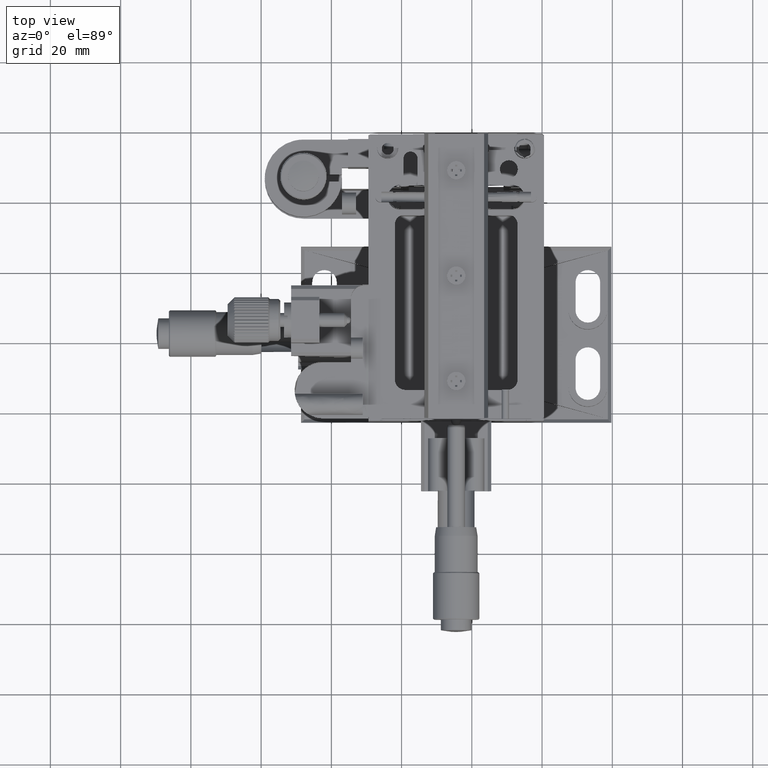
[diagram: clean part render]
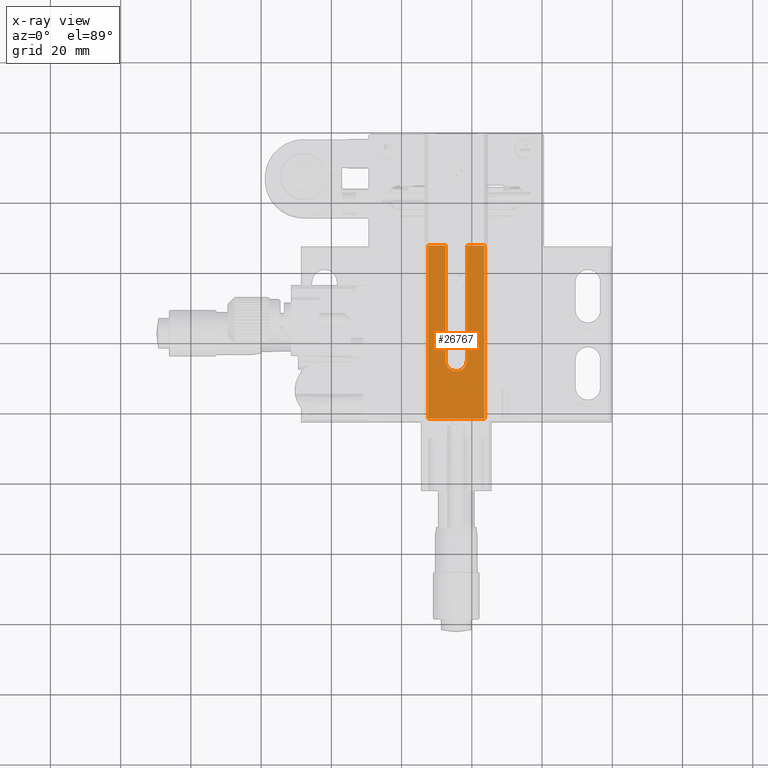
[diagram: x-ray — body ghosted, one internal face saturated and labeled with its STEP entity id]
A machine part, top view, then the same camera in x-ray: the body is ghosted and one INTERNAL B-rep face — a face not visible from any outside direction — is saturated and labeled: STEP entity #26767.
In plain terms, the highlighted face is a freeform B-spline surface patch.
Its self-contained STEP definition (entity closure, byte-faithful):
#816 = CARTESIAN_POINT ( 'NONE',  ( -6.724032030192061526, -7.566187688535866762, 34.50000000000001421 ) ) ;
#842 = CARTESIAN_POINT ( 'NONE',  ( 3.543628209608439938, 26.90884961642780127, 34.50000000000000000 ) ) ;
#1138 = B_SPLINE_CURVE_WITH_KNOTS ( 'NONE', 1,
 ( #19211, #39025 ),
 .UNSPECIFIED., .F., .F.,
 ( 2, 2 ),
 ( 0.000000000000000000, 1.000000000000000000 ),
 .UNSPECIFIED. ) ;
#1469 = CARTESIAN_POINT ( 'NONE',  ( -4.646927829171333180, -8.591186687580732340, 34.50000000000000000 ) ) ;
#2750 = EDGE_CURVE ( 'NONE', #7240, #56161, #36124, .T. ) ;
#3112 = EDGE_LOOP ( 'NONE', ( #17551, #42060, #48616, #16495, #47253, #57945, #20551, #12843 ) ) ;
#3640 = CARTESIAN_POINT ( 'NONE',  ( -7.175109742365060939, -6.861532400837392132, 34.50000000000000000 ) ) ;
#3801 = B_SPLINE_CURVE_WITH_KNOTS ( 'NONE', 1,
 ( #15497, #35633 ),
 .UNSPECIFIED., .F., .F.,
 ( 2, 2 ),
 ( 0.000000000000000000, 1.000000000000000000 ),
 .UNSPECIFIED. ) ;
#3863 = CARTESIAN_POINT ( 'NONE',  ( -12.45637179039160003, 26.90884961642780127, 34.50000000000000000 ) ) ;
#4133 = EDGE_CURVE ( 'NONE', #60061, #7240, #1138, .T. ) ;
#5405 = CARTESIAN_POINT ( 'NONE',  ( -2.481334482586717183, -7.858810620528181801, 34.50000000000000711 ) ) ;
#5721 = CARTESIAN_POINT ( 'NONE',  ( -5.945462146026526895, -8.228256238939998468, 34.50000000000002132 ) ) ;
#6371 = CARTESIAN_POINT ( 'NONE',  ( -3.185989770951141775, -8.309888333367878133, 34.49999999999999289 ) ) ;
#6377 = CARTESIAN_POINT ( 'NONE',  ( -7.456371790391560062, -5.591150383572199623, 34.50000000000000000 ) ) ;
#6691 = CARTESIAN_POINT ( 'NONE',  ( -12.45637179039160003, 27.15884961642780127, 34.25000000000000000 ) ) ;
#6931 = VERTEX_POINT ( 'NONE', #6691 ) ;
#7240 = VERTEX_POINT ( 'NONE', #11109 ) ;
#8522 = CARTESIAN_POINT ( 'NONE',  ( -7.236960231211669203, -6.717591220812076713, 34.49999999999998579 ) ) ;
#8982 = B_SPLINE_CURVE_WITH_KNOTS ( 'NONE', 1,
 ( #3863, #38604 ),
 .UNSPECIFIED., .F., .F.,
 ( 2, 2 ),
 ( 0.000000000000000000, 1.000000000000000000 ),
 .UNSPECIFIED. ) ;
#9844 = B_SPLINE_CURVE_WITH_KNOTS ( 'NONE', 1,
 ( #40067, #59926 ),
 .UNSPECIFIED., .F., .F.,
 ( 2, 2 ),
 ( 0.000000000000000000, 1.000000000000000000 ),
 .UNSPECIFIED. ) ;
#10609 = CARTESIAN_POINT ( 'NONE',  ( -1.456371790391570054, -5.591150383572189853, 34.50000000000000000 ) ) ;
#10842 = B_SPLINE_CURVE_WITH_KNOTS ( 'NONE', 1,
 ( #51991, #26326 ),
 .UNSPECIFIED., .F., .F.,
 ( 2, 2 ),
 ( 0.000000000000000000, 1.000000000000000000 ),
 .UNSPECIFIED. ) ;
#10927 = CARTESIAN_POINT ( 'NONE',  ( -6.917292522326119020, -7.329345882729645822, 34.50000000000000000 ) ) ;
#11109 = CARTESIAN_POINT ( 'NONE',  ( -1.456371790391570054, -5.591150383572189853, 34.50000000000000000 ) ) ;
#11245 = CARTESIAN_POINT ( 'NONE',  ( -1.456371790391572496, -5.781798173951964159, 34.50000000000000711 ) ) ;
#12843 = ORIENTED_EDGE ( 'NONE', *, *, #4133, .T. ) ;
#12861 = VERTEX_POINT ( 'NONE', #59846 ) ;
#14837 = CARTESIAN_POINT ( 'NONE',  ( 3.543628209608445268, -22.09115038357220229, 34.50000000000000000 ) ) ;
#15125 = CARTESIAN_POINT ( 'NONE',  ( -1.657490696713818989, -6.671384123071475436, 34.50000000000000711 ) ) ;
#15443 = CARTESIAN_POINT ( 'NONE',  ( -5.471632338217490066, -8.414266547862295553, 34.50000000000000000 ) ) ;
#15479 = FACE_OUTER_BOUND ( 'NONE', #3112, .T. ) ;
#15497 = CARTESIAN_POINT ( 'NONE',  ( -12.45637179039160003, -22.09115038357220229, 34.50000000000000000 ) ) ;
#15768 = CARTESIAN_POINT ( 'NONE',  ( -5.404597694830522769, -8.438138616300717487, 34.50000000000001421 ) ) ;
#15813 = CARTESIAN_POINT ( 'NONE',  ( -12.45637179039160003, -22.09115038357220229, 34.50000000000000000 ) ) ;
#16495 = ORIENTED_EDGE ( 'NONE', *, *, #38088, .T. ) ;
#17225 = CARTESIAN_POINT ( 'NONE',  ( 3.543628209608445268, -22.09115038357220229, 34.50000000000000000 ) ) ;
#17427 = CARTESIAN_POINT ( 'NONE',  ( -1.456371790391570054, 27.15884961642780127, 34.25000000000000000 ) ) ;
#17551 = ORIENTED_EDGE ( 'NONE', *, *, #2750, .T. ) ;
#18243 = B_SPLINE_CURVE_WITH_KNOTS ( 'NONE', 1,
 ( #50276, #55137 ),
 .UNSPECIFIED., .F., .F.,
 ( 2, 2 ),
 ( 0.000000000000000000, 1.000000000000000000 ),
 .UNSPECIFIED. ) ;
#19211 = CARTESIAN_POINT ( 'NONE',  ( -1.456371790391572718, 26.90884961642780127, 34.50000000000000000 ) ) ;
#20324 = CARTESIAN_POINT ( 'NONE',  ( -3.329942432763863369, -8.371743371367662334, 34.49999999999999289 ) ) ;
#20551 = ORIENTED_EDGE ( 'NONE', *, *, #48957, .T. ) ;
#22175 = B_SPLINE_CURVE_WITH_KNOTS ( 'NONE', 1,
 ( #14837, #842 ),
 .UNSPECIFIED., .F., .F.,
 ( 2, 2 ),
 ( 0.000000000000000000, 1.000000000000000000 ),
 .UNSPECIFIED. ) ;
#22493 = CARTESIAN_POINT ( 'NONE',  ( -7.456371790391589371, -5.972832465827432102, 34.50000000000000000 ) ) ;
#22807 = CARTESIAN_POINT ( 'NONE',  ( -7.456371790391560062, -5.591150383572199623, 34.50000000000000000 ) ) ;
#23124 = CARTESIAN_POINT ( 'NONE',  ( -7.206198727999506559, -6.790891880443387763, 34.50000000000000711 ) ) ;
#26176 = CARTESIAN_POINT ( 'NONE',  ( -3.304086832426512910, -8.361156449409486768, 34.50000000000000711 ) ) ;
#26326 = CARTESIAN_POINT ( 'NONE',  ( -1.456371790391572718, 26.90884961642780127, 34.50000000000000000 ) ) ;
#26767 = ADVANCED_FACE ( 'NONE', ( #15479 ), #48066, .T. ) ;
#27352 = CARTESIAN_POINT ( 'NONE',  ( -7.386160091454011756, -6.340927175389293069, 34.50000000000000000 ) ) ;
#27423 = EDGE_CURVE ( 'NONE', #40795, #46750, #3801, .T. ) ;
#30051 = CARTESIAN_POINT ( 'NONE',  ( -1.559495223206133874, -6.382014713114655180, 34.50000000000000000 ) ) ;
#30378 = CARTESIAN_POINT ( 'NONE',  ( -1.649728226918873997, -6.651021216559199090, 34.50000000000000000 ) ) ;
#30699 = CARTESIAN_POINT ( 'NONE',  ( -7.096826730085001422, -7.022550258775886789, 34.50000000000000000 ) ) ;
#31017 = CARTESIAN_POINT ( 'NONE',  ( -1.482701177493163103, -6.062819532822482316, 34.50000000000000711 ) ) ;
#34939 = CARTESIAN_POINT ( 'NONE',  ( -1.819265935051881389, -7.080240739239760828, 34.50000000000000000 ) ) ;
#35161 = EDGE_CURVE ( 'NONE', #56161, #63134, #18243, .T. ) ;
#35198 = EDGE_CURVE ( 'NONE', #46750, #12861, #22175, .T. ) ;
#35583 = CARTESIAN_POINT ( 'NONE',  ( -2.042485375322491414, -7.419790940339398233, 34.49999999999999289 ) ) ;
#35633 = CARTESIAN_POINT ( 'NONE',  ( 3.543628209608445268, -22.09115038357220229, 34.50000000000000000 ) ) ;
#36124 = B_SPLINE_CURVE_WITH_KNOTS ( 'NONE', 3,
 ( #10609, #11245, #31017, #30051, #59668, #60304, #30378, #15125, #34939, #35583, #5405, #54786, #50895, #6371, #45013, #26176, #20324, #45996, #40134, #1469, #39487, #59986, #15768, #15443, #55430, #50249, #5721, #59347, #816, #10927, #30699, #3640, #23124, #62454, #8522, #27352, #22493, #22807 ),
 .UNSPECIFIED., .F., .F.,
 ( 4, 1, 1, 1, 2, 2, 2, 1, 1, 1, 2, 2, 2, 1, 1, 1, 2, 2, 2, 1, 1, 1, 2, 2, 4 ),
 ( 0.000000000000000000, 0.06250000000000045797, 0.09375000000000054123, 0.1093750000000005829, 0.1171875000000005967, 0.1250000000000006106, 0.2499999999999996947, 0.3124999999999992784, 0.3437499999999990008, 0.3593749999999990008, 0.3671874999999989453, 0.3749999999999988898, 0.4999999999999980571, 0.5624999999999974465, 0.5937499999999970024, 0.6093749999999968914, 0.6171874999999968914, 0.6249999999999967804, 0.7499999999999994449, 0.8125000000000008882, 0.8437500000000015543, 0.8593750000000018874, 0.8671875000000018874, 0.8750000000000019984, 1.000000000000000000 ),
 .UNSPECIFIED. ) ;
#38088 = EDGE_CURVE ( 'NONE', #6931, #40795, #8982, .T. ) ;
#38604 = CARTESIAN_POINT ( 'NONE',  ( -12.45637179039160003, -22.09115038357220229, 34.50000000000000000 ) ) ;
#39025 = CARTESIAN_POINT ( 'NONE',  ( -1.456371790391570054, -5.591150383572189853, 34.50000000000000000 ) ) ;
#39487 = CARTESIAN_POINT ( 'NONE',  ( -4.927880374341859770, -8.564884528485547932, 34.50000000000000000 ) ) ;
#40067 = CARTESIAN_POINT ( 'NONE',  ( -7.456371790391586707, 26.90884961642780127, 34.50000000000000000 ) ) ;
#40134 = CARTESIAN_POINT ( 'NONE',  ( -4.075259712832071557, -8.591077775555090668, 34.50000000000000000 ) ) ;
#40492 = CARTESIAN_POINT ( 'NONE',  ( 3.543628209608439938, -22.09115038357220229, 34.50000000000000000 ) ) ;
#40795 = VERTEX_POINT ( 'NONE', #60579 ) ;
#42060 = ORIENTED_EDGE ( 'NONE', *, *, #35161, .T. ) ;
#45013 = CARTESIAN_POINT ( 'NONE',  ( -3.256630292210824340, -8.340977319869010032, 34.49999999999998579 ) ) ;
#45996 = CARTESIAN_POINT ( 'NONE',  ( -3.706411324781010208, -8.520865933029606154, 34.50000000000001421 ) ) ;
#46750 = VERTEX_POINT ( 'NONE', #17225 ) ;
#47186 = EDGE_CURVE ( 'NONE', #63134, #6931, #9844, .T. ) ;
#47253 = ORIENTED_EDGE ( 'NONE', *, *, #27423, .T. ) ;
#48066 = B_SPLINE_SURFACE_WITH_KNOTS ( 'NONE', 1, 1, ( 
 ( #50286, #40492 ),
 ( #60345, #15813 ) ),
 .UNSPECIFIED., .F., .F., .F.,
 ( 2, 2 ),
 ( 2, 2 ),
 ( 0.000000000000000000, 1.000000000000000000 ),
 ( 0.000000000000000000, 1.000000000000000000 ),
 .UNSPECIFIED. ) ;
#48616 = ORIENTED_EDGE ( 'NONE', *, *, #47186, .T. ) ;
#48957 = EDGE_CURVE ( 'NONE', #12861, #60061, #10842, .T. ) ;
#50249 = CARTESIAN_POINT ( 'NONE',  ( -5.536605529892936417, -8.390031477248157898, 34.50000000000000711 ) ) ;
#50276 = CARTESIAN_POINT ( 'NONE',  ( -7.456371790391560062, -5.591150383572199623, 34.50000000000000000 ) ) ;
#50286 = CARTESIAN_POINT ( 'NONE',  ( 3.543628209608439938, 26.90884961642780127, 34.50000000000000000 ) ) ;
#50895 = CARTESIAN_POINT ( 'NONE',  ( -3.024971911458838925, -8.231605319532205201, 34.50000000000000000 ) ) ;
#51991 = CARTESIAN_POINT ( 'NONE',  ( 3.543628209608439938, 26.90884961642780127, 34.50000000000000000 ) ) ;
#54786 = CARTESIAN_POINT ( 'NONE',  ( -2.718176286262032892, -8.052071110528824960, 34.50000000000000000 ) ) ;
#55137 = CARTESIAN_POINT ( 'NONE',  ( -7.456371790391586707, 26.90884961642780127, 34.50000000000000000 ) ) ;
#55430 = CARTESIAN_POINT ( 'NONE',  ( -5.516220402287988378, -8.397802739421932117, 34.50000000000001421 ) ) ;
#56161 = VERTEX_POINT ( 'NONE', #6377 ) ;
#57637 = CARTESIAN_POINT ( 'NONE',  ( -7.456371790391569832, 27.15884961642780127, 34.25000000000000000 ) ) ;
#57945 = ORIENTED_EDGE ( 'NONE', *, *, #35198, .T. ) ;
#59347 = CARTESIAN_POINT ( 'NONE',  ( -6.285012341469626840, -8.005036804323724553, 34.49999999999999289 ) ) ;
#59668 = CARTESIAN_POINT ( 'NONE',  ( -1.609411352919565052, -6.539446535329872745, 34.50000000000000711 ) ) ;
#59846 = CARTESIAN_POINT ( 'NONE',  ( 3.543628209608435053, 27.15884961642780127, 34.25000000000000000 ) ) ;
#59926 = CARTESIAN_POINT ( 'NONE',  ( -12.45637179039160003, 26.90884961642780127, 34.50000000000000000 ) ) ;
#59986 = CARTESIAN_POINT ( 'NONE',  ( -5.247115695959041481, -8.488074599768829387, 34.50000000000000000 ) ) ;
#60061 = VERTEX_POINT ( 'NONE', #17427 ) ;
#60304 = CARTESIAN_POINT ( 'NONE',  ( -1.633272359980380228, -6.606453223151203424, 34.50000000000000000 ) ) ;
#60345 = CARTESIAN_POINT ( 'NONE',  ( -12.45637179039160003, 26.90884961642780127, 34.50000000000000000 ) ) ;
#60579 = CARTESIAN_POINT ( 'NONE',  ( -12.45637179039160003, -22.09115038357220229, 34.50000000000000000 ) ) ;
#62454 = CARTESIAN_POINT ( 'NONE',  ( -7.226377856917737930, -6.743435340849218029, 34.50000000000000711 ) ) ;
#63134 = VERTEX_POINT ( 'NONE', #57637 ) ;